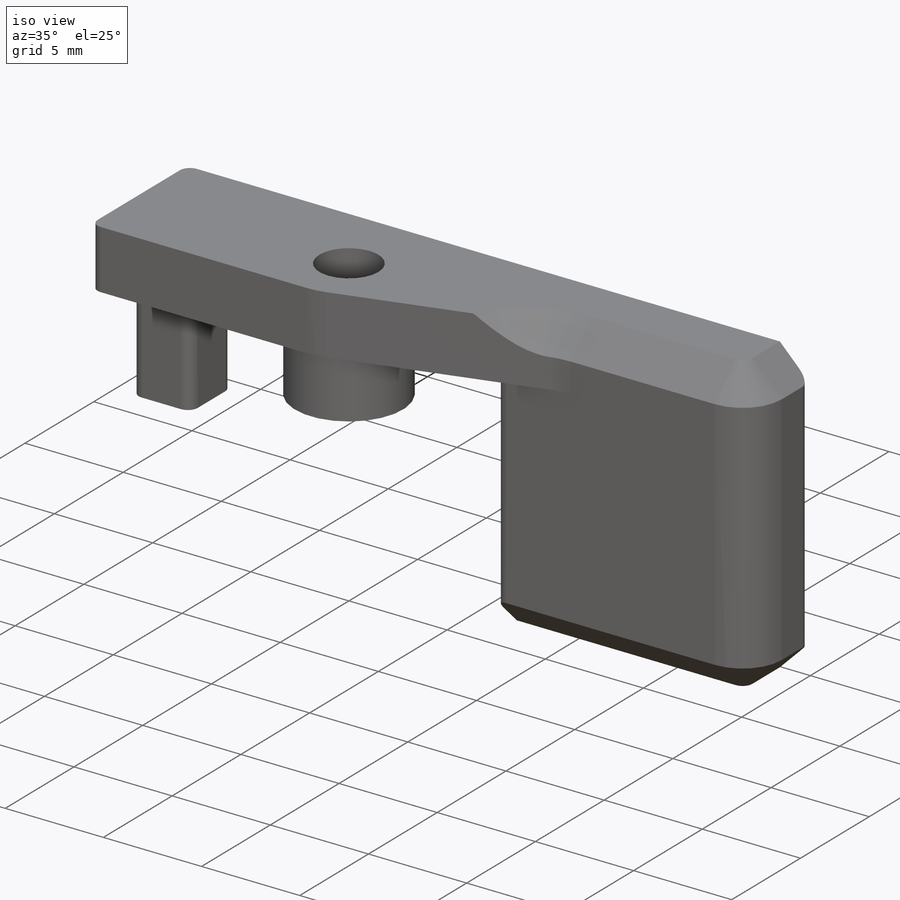
[diagram: iso view]
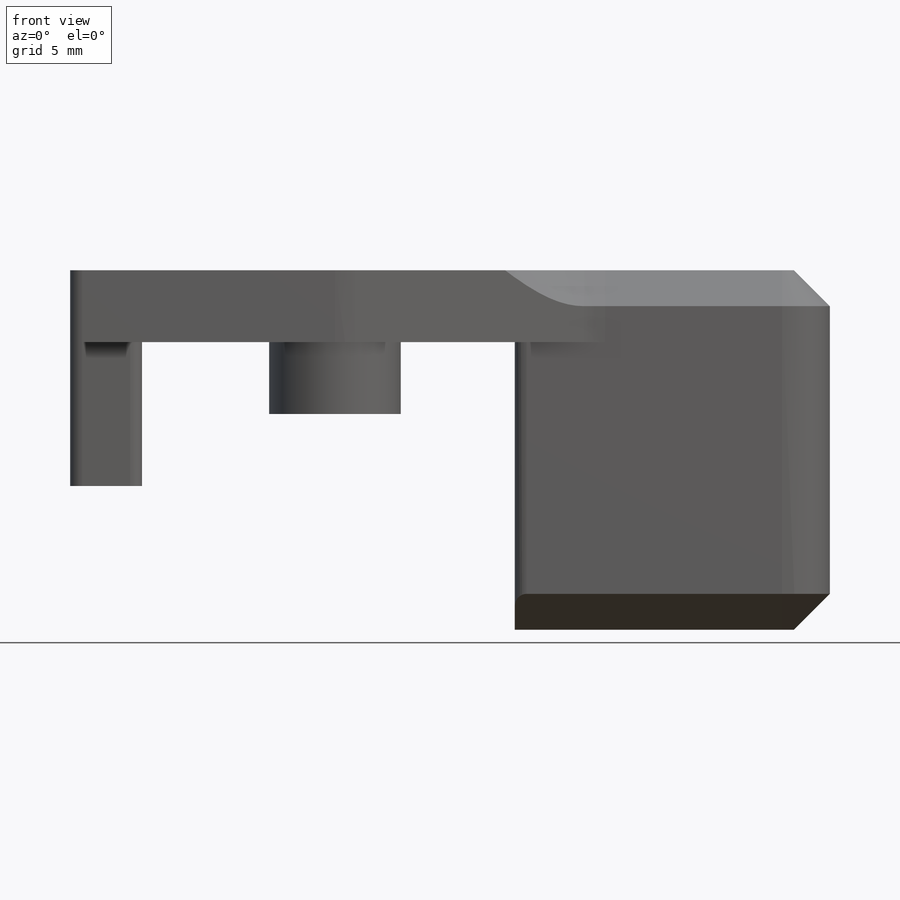
[diagram: front view]
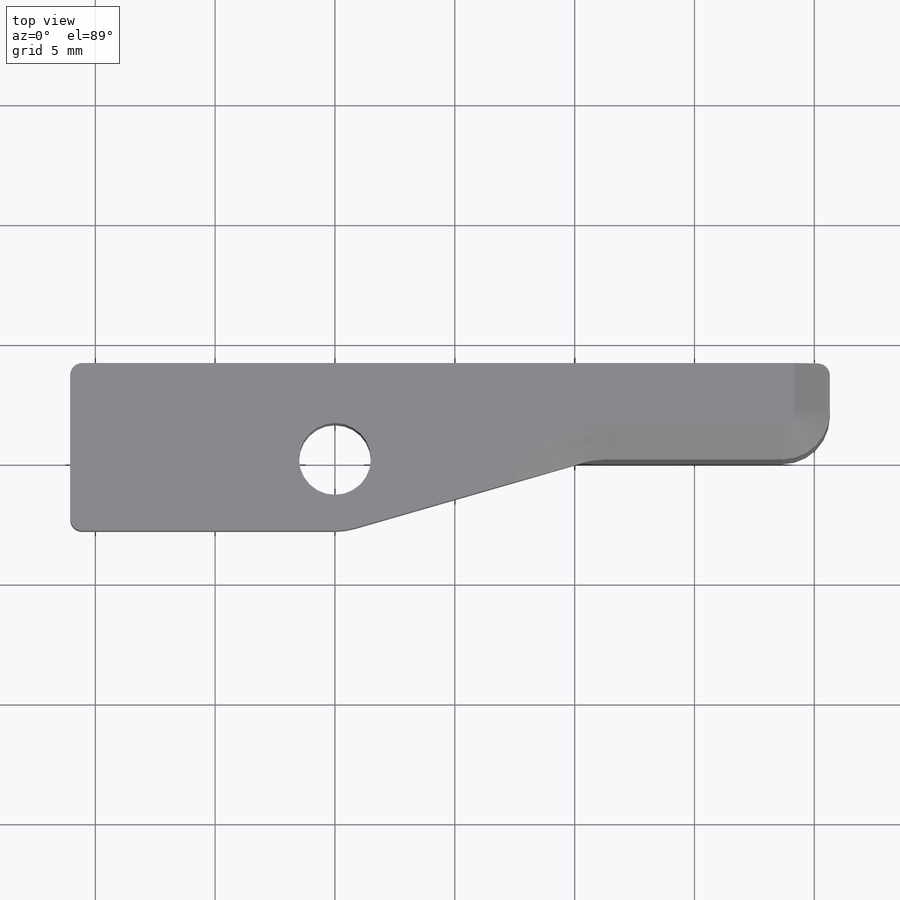
[diagram: top view]
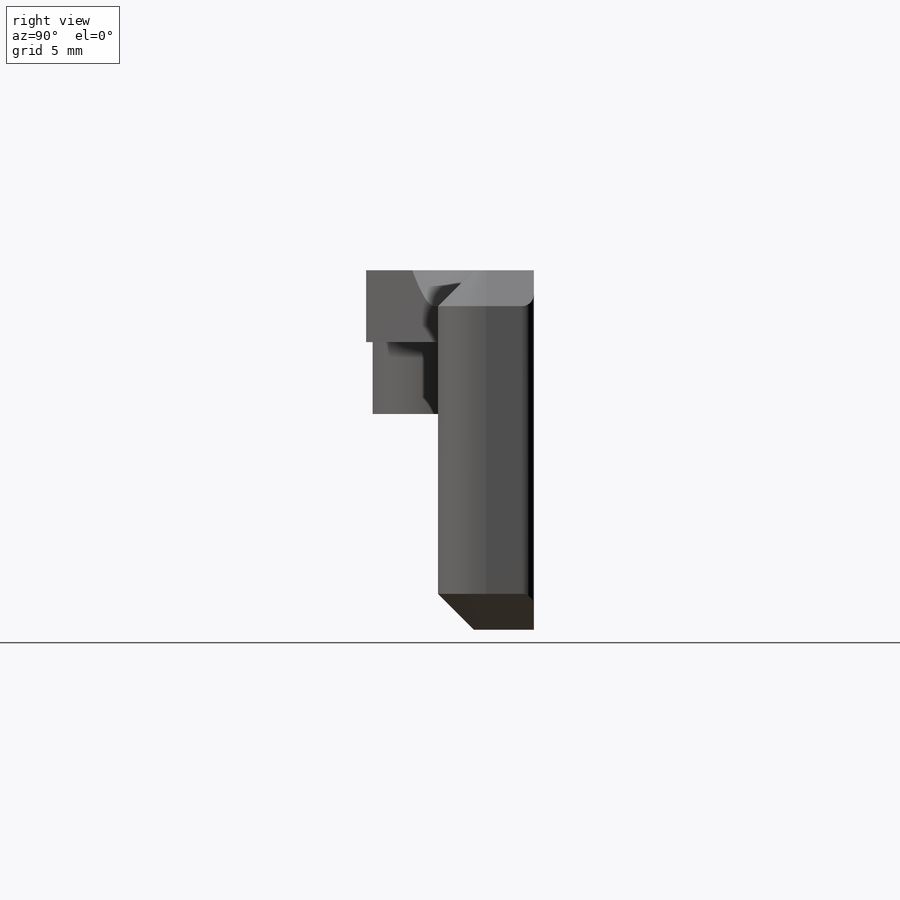
[diagram: right view]
SOLIDWORKS PART (.sldprt)
format: sldprt  version: not decoded by parser v0  size: 311,808 bytes
history: native  units: mm
features: sketch x10, extrude x6, cut_extrude x4, fillet x3, material x1, chamfer x1 (+11 scaffold rows collapsed)
feature tree (36):
  scaffold x11  (default folders/planes/origin — collapsed)
  material  "Material <not specified>"
  sketch  "Sketch1"  dims[D1=4.0mm D2=~20.648485mm]
  extrude  "Boss-Extrude1"  Depth=6mm
  sketch  "Sketch2"
  extrude  "Boss-Extrude2"  [1 undecoded]
  sketch  "Sketch3"  dims[D1=7.5mm]
  extrude  "Boss-Extrude3"  Depth=15mm
  fillet  "Fillet1"  Radius=2mm
  sketch  "Sketch4"
  extrude  "Boss-Extrude4"  [1 undecoded]
  sketch  "Sketch5"  dims[D1=2.7mm]
  cut_extrude  "Cut-Extrude1"  Depth=10mm
  sketch  "Sketch6"  dims[D1=11.05mm]
  cut_extrude  "Cut-Extrude2"  Depth=10mm
  sketch  "Sketch7"  dims[D1=1.0mm D2=3.0mm]
  extrude  "Boss-Extrude5"  Depth=9mm
  sketch  "Sketch8"
  extrude  "Boss-Extrude6"  [1 undecoded]
  sketch  "Sketch9"  dims[D1=5.5mm]
  cut_extrude  "Cut-Extrude3"  Depth=3mm
  fillet  "Fillet2"  Radius=3.175mm
  chamfer  "Chamfer1"  Distance=1.5mm Angle=45deg
  fillet  "Fillet3"  Radius=0.5mm
  sketch  "Sketch10"  dims[D1=3.0mm]
  cut_extrude  "Cut-Extrude4"  Depth=10mm
decode coverage: 18 of 24 modeling features carry decoded parameters
note: ~ marks probable driven/reference dimensions
note: 3 parameter values undecoded
summary: no parameter record found for 3 features
note: suppression state not decoded; provenance and decode notes live in map.json
